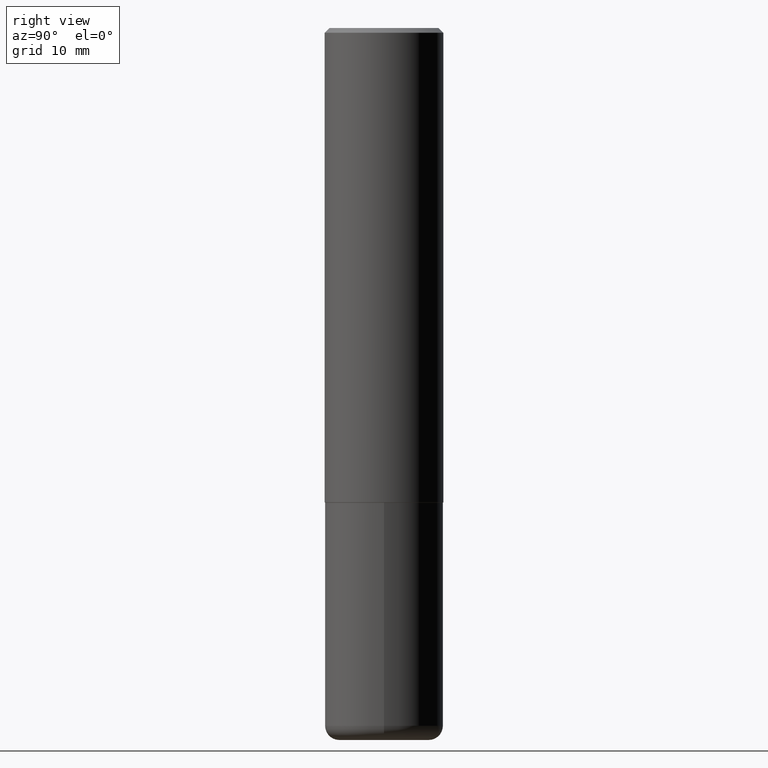
[diagram: clean part render]
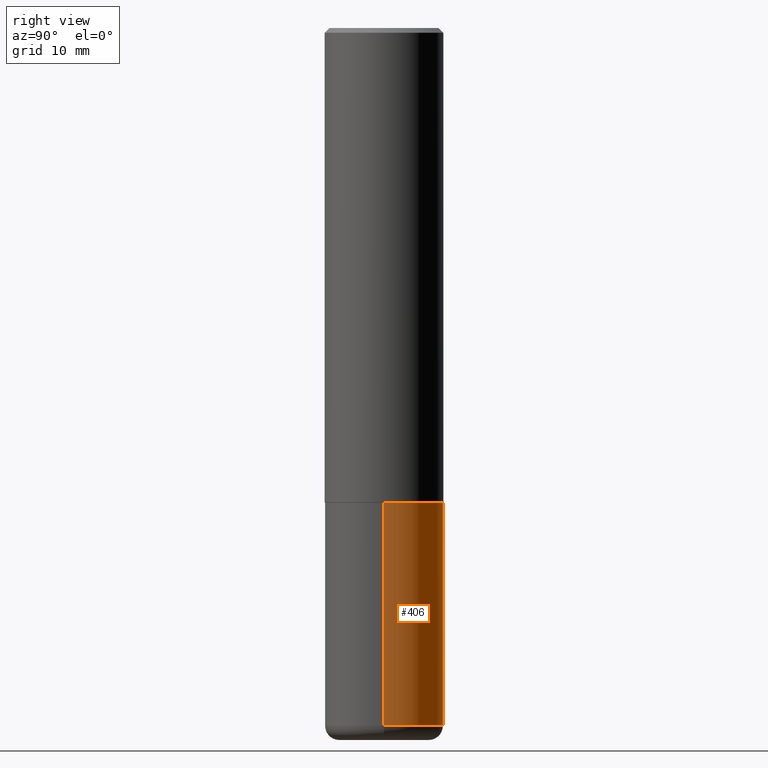
[diagram: same view with one face highlighted and labeled with its STEP entity id]
A machine part, right view. The second image highlights one B-rep face of the part: STEP entity #406.
In plain terms, the highlighted cylindrical surface (partial cylindrical patch) has radius 6.35 mm, axis along (-0, 0, 1).
Its self-contained STEP definition (entity closure, byte-faithful):
#8 = CARTESIAN_POINT ( 'NONE',  ( 0.2500000000000000000, -1.745740669421566678E-15, 1.219044193948983948E-29 ) ) ;
#20 = DIRECTION ( 'NONE',  ( -2.445468806185136597E-29, 3.491481338843145583E-15, 1.000000000000000000 ) ) ;
#31 = VERTEX_POINT ( 'NONE', #348 ) ;
#32 = EDGE_CURVE ( 'NONE', #144, #331, #71, .T. ) ;
#47 = DIRECTION ( 'NONE',  ( -2.445468806185136877E-29, 3.491481338843145188E-15, 1.000000000000000000 ) ) ;
#58 = AXIS2_PLACEMENT_3D ( 'NONE', #109, #174, #114 ) ;
#61 = AXIS2_PLACEMENT_3D ( 'NONE', #182, #20, #250 ) ;
#66 = ORIENTED_EDGE ( 'NONE', *, *, #338, .T. ) ;
#71 = CIRCLE ( 'NONE', #61, 0.2500000000000000000 ) ;
#81 = VECTOR ( 'NONE', #303, 39.37007874015748143 ) ;
#109 = CARTESIAN_POINT ( 'NONE',  ( 0.000000000000000000, 0.000000000000000000, 0.000000000000000000 ) ) ;
#114 = DIRECTION ( 'NONE',  ( 1.000000000000000000, -6.982962677686266711E-15, 4.876176775795935793E-29 ) ) ;
#138 = CARTESIAN_POINT ( 'NONE',  ( -0.2500000000000000000, -6.847602067542319531E-15, -2.000000000000000444 ) ) ;
#141 = CARTESIAN_POINT ( 'NONE',  ( -0.2499999999999998335, -8.488598296798600727E-15, -2.940000000000000391 ) ) ;
#144 = VERTEX_POINT ( 'NONE', #381 ) ;
#174 = DIRECTION ( 'NONE',  ( -2.445468806185136597E-29, 3.491481338843145583E-15, 1.000000000000000000 ) ) ;
#178 = CARTESIAN_POINT ( 'NONE',  ( -0.2500000000000000000, 1.776356839400250465E-15, -1.229733772563726445E-29 ) ) ;
#182 = CARTESIAN_POINT ( 'NONE',  ( 7.189678290184301639E-29, -1.026495513619884961E-14, -2.940000000000000391 ) ) ;
#183 = VECTOR ( 'NONE', #47, 39.37007874015748143 ) ;
#229 = EDGE_LOOP ( 'NONE', ( #360, #66, #232, #273 ) ) ;
#232 = ORIENTED_EDGE ( 'NONE', *, *, #361, .F. ) ;
#244 = FACE_OUTER_BOUND ( 'NONE', #229, .T. ) ;
#250 = DIRECTION ( 'NONE',  ( 1.000000000000000000, -6.982962677686262766E-15, 0.000000000000000000 ) ) ;
#273 = ORIENTED_EDGE ( 'NONE', *, *, #275, .F. ) ;
#275 = EDGE_CURVE ( 'NONE', #144, #31, #304, .T. ) ;
#303 = DIRECTION ( 'NONE',  ( -2.445468806185136877E-29, 3.491481338843145188E-15, 1.000000000000000000 ) ) ;
#304 = LINE ( 'NONE', #8, #81 ) ;
#310 = CARTESIAN_POINT ( 'NONE',  ( 4.890937612370273754E-29, -6.982962677686291954E-15, -2.000000000000000444 ) ) ;
#314 = CYLINDRICAL_SURFACE ( 'NONE', #58, 0.2500000000000000000 ) ;
#329 = CIRCLE ( 'NONE', #355, 0.2500000000000000000 ) ;
#331 = VERTEX_POINT ( 'NONE', #141 ) ;
#333 = VERTEX_POINT ( 'NONE', #138 ) ;
#338 = EDGE_CURVE ( 'NONE', #331, #333, #412, .T. ) ;
#348 = CARTESIAN_POINT ( 'NONE',  ( 0.2500000000000000000, -8.728703347107858632E-15, -2.000000000000000444 ) ) ;
#355 = AXIS2_PLACEMENT_3D ( 'NONE', #310, #409, #408 ) ;
#360 = ORIENTED_EDGE ( 'NONE', *, *, #32, .T. ) ;
#361 = EDGE_CURVE ( 'NONE', #31, #333, #329, .T. ) ;
#381 = CARTESIAN_POINT ( 'NONE',  ( 0.2499999999999998335, -1.201069580562041471E-14, -2.940000000000000391 ) ) ;
#406 = ADVANCED_FACE ( 'NONE', ( #244 ), #314, .T. ) ;
#408 = DIRECTION ( 'NONE',  ( 1.000000000000000000, -6.982962677686266711E-15, 0.000000000000000000 ) ) ;
#409 = DIRECTION ( 'NONE',  ( -2.445468806185136597E-29, 3.491481338843145583E-15, 1.000000000000000000 ) ) ;
#412 = LINE ( 'NONE', #178, #183 ) ;